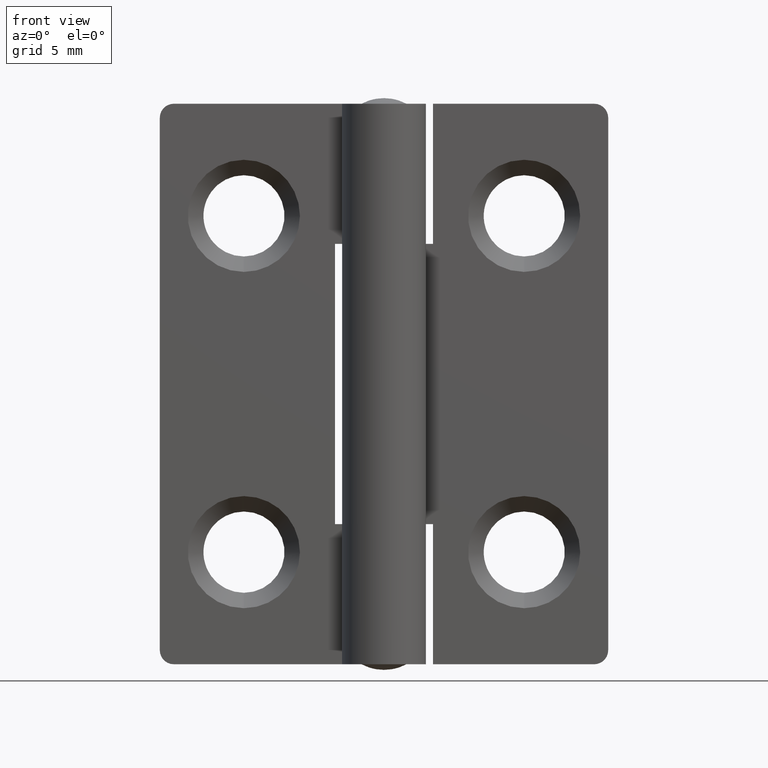
[diagram: clean part render]
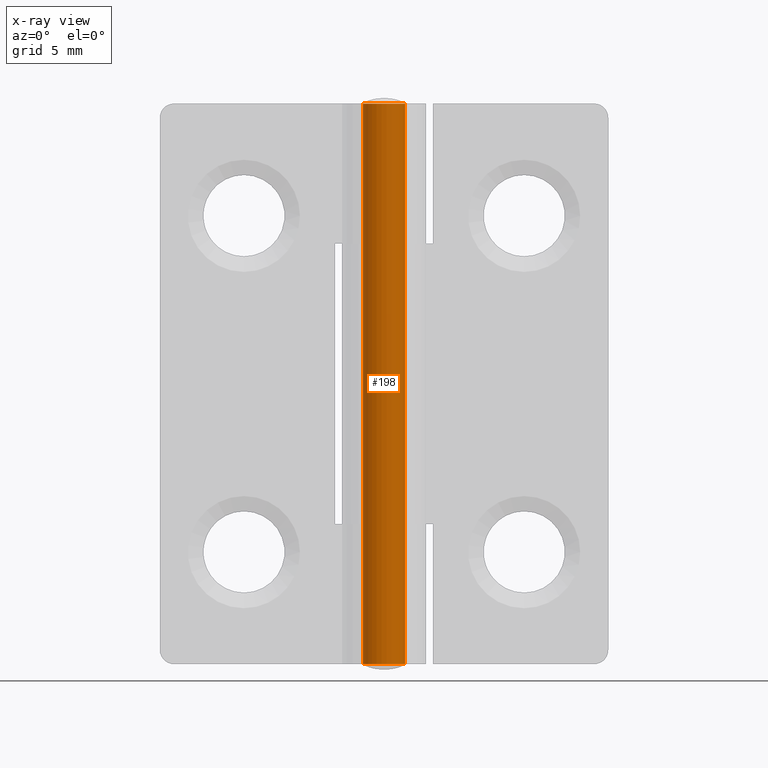
[diagram: x-ray — body ghosted, one internal face saturated and labeled with its STEP entity id]
A machine part, front view, then the same camera in x-ray: the body is ghosted and one INTERNAL B-rep face — a face not visible from any outside direction — is saturated and labeled: STEP entity #198.
In plain terms, the highlighted cylindrical surface (edge-blend (fillet) strip) has radius 1.5 mm, axis along (0, 0, 1).
Its self-contained STEP definition (entity closure, byte-faithful):
#198=ADVANCED_FACE('',(#704),#703,.T.);
#703=CYLINDRICAL_SURFACE('',#1059,1.50000000000E+00);
#704=FACE_OUTER_BOUND('',#1060,.T.);
#1056=CARTESIAN_POINT('',(0.00000000000E+00,0.00000000000E+00,0.00000000000E+00));
#1057=DIRECTION('',(0.00000000000E+00,-0.00000000000E+00,1.00000000000E+00));
#1058=DIRECTION('',(1.00000000000E+00,-0.00000000000E+00,-0.00000000000E+00));
#1059=AXIS2_PLACEMENT_3D('',#1056,#1057,#1058);
#1060=EDGE_LOOP('',(#1345,#1346,#1347,#1348));
#1345=ORIENTED_EDGE('',*,*,#1490,.F.);
#1346=ORIENTED_EDGE('',*,*,#1495,.T.);
#1347=ORIENTED_EDGE('',*,*,#1493,.T.);
#1348=ORIENTED_EDGE('',*,*,#1496,.F.);
#1490=EDGE_CURVE('',#2356,#2355,#2363,.T.);
#1493=EDGE_CURVE('',#2383,#2384,#2385,.T.);
#1495=EDGE_CURVE('',#2356,#2383,#2397,.T.);
#1496=EDGE_CURVE('',#2355,#2384,#2403,.T.);
#2355=VERTEX_POINT('',#2943);
#2356=VERTEX_POINT('',#2944);
#2363=CIRCLE('',#2952,1.50000000000E+00);
#2383=VERTEX_POINT('',#2963);
#2384=VERTEX_POINT('',#2964);
#2385=CIRCLE('',#2968,1.50000000000E+00);
#2397=(BOUNDED_CURVE() B_SPLINE_CURVE(1,(#2973,#2974),.UNSPECIFIED.,.F.,.F.) B_SPLINE_CURVE_WITH_KNOTS((2,2),(8.33333335810E-02,9.16666666255E-01),.UNSPECIFIED.) CURVE() GEOMETRIC_REPRESENTATION_ITEM() RATIONAL_B_SPLINE_CURVE((1.00000000000E+00,1.00000000000E+00)) REPRESENTATION_ITEM('') );
#2403=(BOUNDED_CURVE() B_SPLINE_CURVE(1,(#2975,#2976),.UNSPECIFIED.,.F.,.F.) B_SPLINE_CURVE_WITH_KNOTS((2,2),(8.33333333333E-02,9.16666666667E-01),.UNSPECIFIED.) CURVE() GEOMETRIC_REPRESENTATION_ITEM() RATIONAL_B_SPLINE_CURVE((7.50000000000E-01,7.50000000000E-01)) REPRESENTATION_ITEM('') );
#2943=CARTESIAN_POINT('',(-1.50000000000E+00,0.00000000000E+00,0.00000000000E+00));
#2944=CARTESIAN_POINT('',(1.50000000000E+00,-7.40148683083E-17,0.00000000000E+00));
#2949=CARTESIAN_POINT('',(0.00000000000E+00,0.00000000000E+00,0.00000000000E+00));
#2950=DIRECTION('',(-0.00000000000E+00,0.00000000000E+00,-1.00000000000E+00));
#2951=DIRECTION('',(-1.00000000000E+00,-1.22460635382E-16,0.00000000000E+00));
#2952=AXIS2_PLACEMENT_3D('',#2949,#2950,#2951);
#2963=CARTESIAN_POINT('',(1.50000000000E+00,-7.40148683083E-17,4.00000000000E+01));
#2964=CARTESIAN_POINT('',(-1.50000000000E+00,0.00000000000E+00,4.00000000000E+01));
#2965=CARTESIAN_POINT('',(0.00000000000E+00,0.00000000000E+00,4.00000000000E+01));
#2966=DIRECTION('',(-0.00000000000E+00,0.00000000000E+00,-1.00000000000E+00));
#2967=DIRECTION('',(-1.00000000000E+00,-1.22460635382E-16,0.00000000000E+00));
#2968=AXIS2_PLACEMENT_3D('',#2965,#2966,#2967);
#2973=CARTESIAN_POINT('',(1.50000000000E+00,0.00000000000E+00,1.18889285083E-08));
#2974=CARTESIAN_POINT('',(1.50000000000E+00,0.00000000000E+00,3.99999999803E+01));
#2975=CARTESIAN_POINT('',(-1.50000000000E+00,0.00000000000E+00,0.00000000000E+00));
#2976=CARTESIAN_POINT('',(-1.50000000000E+00,0.00000000000E+00,4.00000000000E+01));